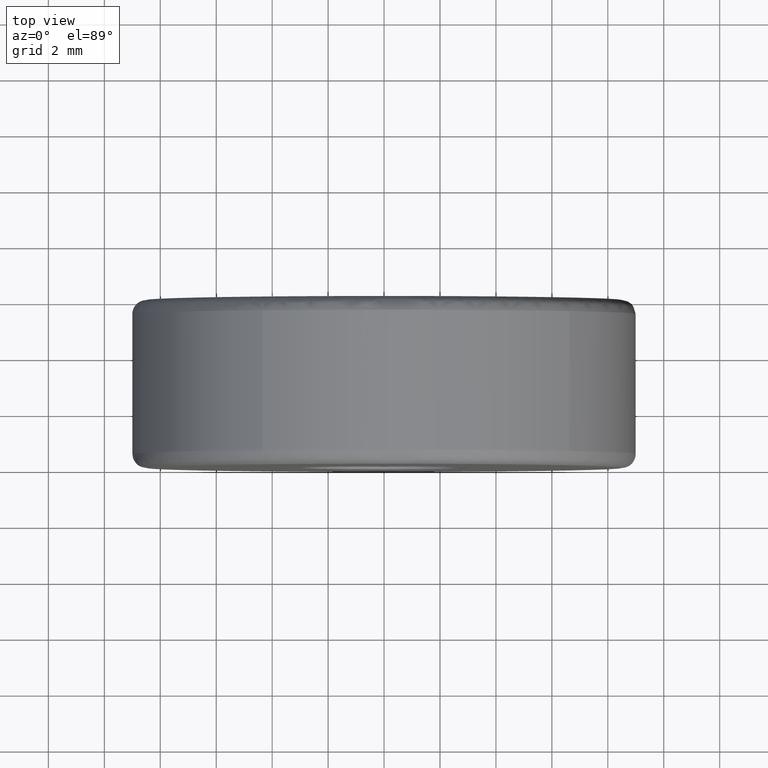
[diagram: clean part render]
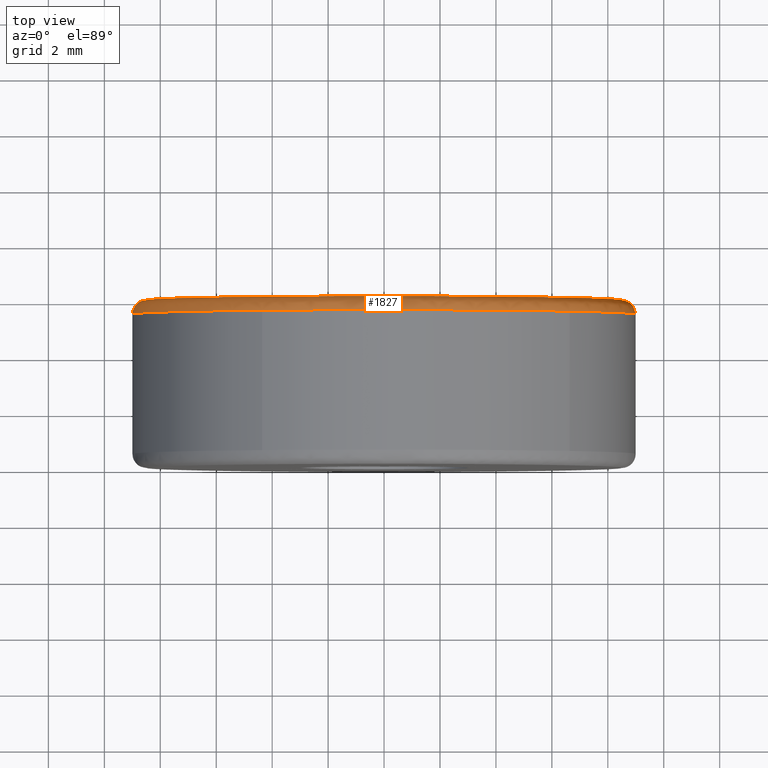
[diagram: same view with one face highlighted and labeled with its STEP entity id]
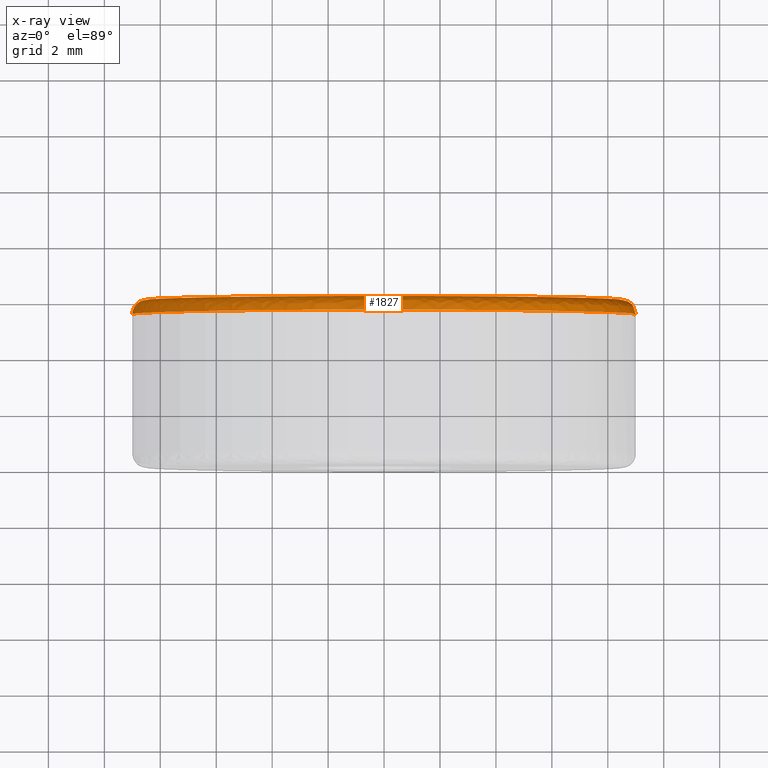
[diagram: x-ray of the same camera — body ghosted, the highlighted face saturated]
A machine part, top view. The second image highlights one B-rep face of the part: STEP entity #1827.
The next image is the same camera in x-ray: the body ghosted, the highlighted face saturated — about 0% of this face is hidden behind the body in this view.
In plain terms, the highlighted face is a freeform B-spline surface patch.
Its self-contained STEP definition (entity closure, byte-faithful):
#1195=CARTESIAN_POINT('',(-4.357976150434524,5.500000000007563,7.874518643843643));
#1196=VERTEX_POINT('',#1195);
#1202=CARTESIAN_POINT('',(-9.0,5.500000000060477,4.425539E-016));
#1203=VERTEX_POINT('',#1202);
#1204=CARTESIAN_POINT('',(-4.357976150434525,5.500000000007563,7.874518643843643));
#1205=CARTESIAN_POINT('',(-8.999999999999975,5.500000000024826,5.305494409966305));
#1206=CARTESIAN_POINT('',(-9.0,5.500000000060477,4.425539E-016));
#1214=(BOUNDED_CURVE()B_SPLINE_CURVE(2,(#1204,#1205,#1206),.UNSPECIFIED.,.F.,.U.)B_SPLINE_CURVE_WITH_KNOTS((3,3),(0.582484260833104,0.749999999999999),.UNSPECIFIED.)CURVE()GEOMETRIC_REPRESENTATION_ITEM()RATIONAL_B_SPLINE_CURVE((0.870495159877570,0.803743103813973,0.999999999999998))REPRESENTATION_ITEM(''));
#1215=EDGE_CURVE('',#1196,#1203,#1214,.T.);
#1232=CARTESIAN_POINT('',(8.939804749065401,5.500000000061864,-1.039178063946548));
#1233=VERTEX_POINT('',#1232);
#1247=CARTESIAN_POINT('',(6.635496357939939,5.500000000000000,6.080311512066266));
#1248=VERTEX_POINT('',#1247);
#1249=CARTESIAN_POINT('',(8.939804749065401,5.500000000061864,-1.039178063946548));
#1250=CARTESIAN_POINT('',(9.0,5.500000000000001,-0.521332461883805));
#1251=CARTESIAN_POINT('',(9.0,5.500000000000000,-1.775281E-016));
#1252=CARTESIAN_POINT('',(9.000000000000002,5.500000000000001,3.499908030057154));
#1253=CARTESIAN_POINT('',(6.635496357939940,5.500000000000000,6.080311512066266));
#1261=(BOUNDED_CURVE()B_SPLINE_CURVE(2,(#1249,#1250,#1251,#1252,#1253),.UNSPECIFIED.,.F.,.U.)B_SPLINE_CURVE_WITH_KNOTS((3,2,3),(0.229999999999891,0.250000000000000,0.368415192864189),.UNSPECIFIED.)CURVE()GEOMETRIC_REPRESENTATION_ITEM()RATIONAL_B_SPLINE_CURVE((0.956886118190445,0.976568542494796,1.0,0.861267972022367,0.853959782840026))REPRESENTATION_ITEM(''));
#1262=EDGE_CURVE('',#1233,#1248,#1261,.T.);
#1364=CARTESIAN_POINT('',(0.0,5.500000000000000,9.0));
#1365=VERTEX_POINT('',#1364);
#1366=CARTESIAN_POINT('',(6.635496357939939,5.500000000000000,6.080311512066266));
#1367=CARTESIAN_POINT('',(3.960095355138320,5.500000000000000,9.0));
#1368=CARTESIAN_POINT('',(0.0,5.500000000000000,9.0));
#1376=(BOUNDED_CURVE()B_SPLINE_CURVE(2,(#1366,#1367,#1368),.UNSPECIFIED.,.F.,.U.)B_SPLINE_CURVE_WITH_KNOTS((3,3),(0.368415192864190,0.500000000000000),.UNSPECIFIED.)CURVE()GEOMETRIC_REPRESENTATION_ITEM()RATIONAL_B_SPLINE_CURVE((0.853959782840026,0.845838809164181,1.0))REPRESENTATION_ITEM(''));
#1377=EDGE_CURVE('',#1248,#1365,#1376,.T.);
#1379=CARTESIAN_POINT('',(0.0,5.500000000000000,9.0));
#1380=CARTESIAN_POINT('',(-2.324320247690170,5.500000000000001,9.000000000000002));
#1381=CARTESIAN_POINT('',(-4.357976150434525,5.500000000007563,7.874518643843643));
#1389=(BOUNDED_CURVE()B_SPLINE_CURVE(2,(#1379,#1380,#1381),.UNSPECIFIED.,.F.,.U.)B_SPLINE_CURVE_WITH_KNOTS((3,3),(0.500000000000000,0.582484260833104),.UNSPECIFIED.)CURVE()GEOMETRIC_REPRESENTATION_ITEM()RATIONAL_B_SPLINE_CURVE((1.0,0.903363677372575,0.870495159877570))REPRESENTATION_ITEM(''));
#1390=EDGE_CURVE('',#1365,#1196,#1389,.T.);
#1732=CARTESIAN_POINT('',(8.408705382390977,5.998796154887645,-0.977441211980834));
#1733=CARTESIAN_POINT('',(8.465324419697662,5.998796154887641,-0.490360456728366));
#1734=CARTESIAN_POINT('',(8.465324419697662,5.998796154887643,-1.555004E-015));
#1735=CARTESIAN_POINT('',(8.465324419697661,5.998796154887642,8.465324419697659));
#1736=CARTESIAN_POINT('',(2.073338E-015,5.998796154887643,8.465324419697662));
#1737=CARTESIAN_POINT('',(-8.465324419697659,5.998796154887642,8.465324419697662));
#1738=CARTESIAN_POINT('',(-8.465324419697662,5.998796154887643,2.591673E-015));
#1739=CARTESIAN_POINT('',(8.978414568266807,6.038668183561947,-1.043665108739688));
#1740=CARTESIAN_POINT('',(9.038869675953198,6.038668183561947,-0.523583508777905));
#1741=CARTESIAN_POINT('',(9.038869675953196,6.038668183561947,-1.660359E-015));
#1742=CARTESIAN_POINT('',(9.038869675953196,6.038668183561945,9.038869675953194));
#1743=CARTESIAN_POINT('',(2.213811E-015,6.038668183561947,9.038869675953196));
#1744=CARTESIAN_POINT('',(-9.038869675953189,6.038668183561945,9.038869675953196));
#1745=CARTESIAN_POINT('',(-9.038869675953196,6.038668183561947,2.767264E-015));
#1746=CARTESIAN_POINT('',(8.938596156746488,5.465137879022374,-1.039036553611918));
#1747=CARTESIAN_POINT('',(8.998783151801401,5.465137879022370,-0.521261465898369));
#1748=CARTESIAN_POINT('',(8.998783151801399,5.465137879022370,-1.652995E-015));
#1749=CARTESIAN_POINT('',(8.998783151801403,5.465137879022372,8.998783151801401));
#1750=CARTESIAN_POINT('',(2.203993E-015,5.465137879022370,8.998783151801399));
#1751=CARTESIAN_POINT('',(-8.998783151801401,5.465137879022372,8.998783151801403));
#1752=CARTESIAN_POINT('',(-8.998783151801399,5.465137879022370,2.754992E-015));
#1760=(BOUNDED_SURFACE()B_SPLINE_SURFACE(2,2,((#1732,#1739,#1746),(#1733,#1740,#1747),(#1734,#1741,#1748),(#1735,#1742,#1749),(#1736,#1743,#1750),(#1737,#1744,#1751),(#1738,#1745,#1752)),.UNSPECIFIED.,.F.,.F.,.U.)B_SPLINE_SURFACE_WITH_KNOTS((3,2,2,3),(3,3),(0.0,1.192772630908098,16.102444736230680,31.012116841553269),(0.0,0.911185552149593),.UNSPECIFIED.)GEOMETRIC_REPRESENTATION_ITEM()RATIONAL_B_SPLINE_SURFACE(((0.876476015734820,0.573569810251308,0.871620867636307),(0.894504450374173,0.585367698213538,0.889549435629469),(0.915966868665182,0.599412800379155,0.910892965077561),(0.647686384175358,0.423848855878119,0.644098592541464),(0.915966868665182,0.599412800379155,0.910892965077561),(0.647686384175358,0.423848855878119,0.644098592541464),(0.915966868665182,0.599412800379155,0.910892965077561)))REPRESENTATION_ITEM('')SURFACE());
#1761=ORIENTED_EDGE('',*,*,#1377,.F.);
#1762=ORIENTED_EDGE('',*,*,#1262,.F.);
#1763=CARTESIAN_POINT('',(8.443148930439094,6.0,-0.981445949391750));
#1764=VERTEX_POINT('',#1763);
#1765=CARTESIAN_POINT('',(8.443148930439094,6.0,-0.981445949391750));
#1766=CARTESIAN_POINT('',(8.939804748942835,5.999999998452672,-1.039178063929380));
#1767=CARTESIAN_POINT('',(8.939804749065401,5.500000000061864,-1.039178063946548));
#1775=(BOUNDED_CURVE()B_SPLINE_CURVE(2,(#1765,#1766,#1767),.UNSPECIFIED.,.F.,.U.)B_SPLINE_CURVE_WITH_KNOTS((3,3),(-1.736413117869313,-0.276558718270009),.UNSPECIFIED.)CURVE()GEOMETRIC_REPRESENTATION_ITEM()RATIONAL_B_SPLINE_CURVE((0.850203275200330,0.599621899798078,0.845789311811561))REPRESENTATION_ITEM(''));
#1776=EDGE_CURVE('',#1764,#1233,#1775,.T.);
#1777=ORIENTED_EDGE('',*,*,#1776,.F.);
#1778=CARTESIAN_POINT('',(0.0,6.0,8.500000000000000));
#1779=VERTEX_POINT('',#1778);
#1780=CARTESIAN_POINT('',(8.443148930439094,6.0,-0.981445949391750));
#1781=CARTESIAN_POINT('',(8.500000000000000,6.0,-0.492369547354471));
#1782=CARTESIAN_POINT('',(8.500000000000000,6.0,-1.775281E-016));
#1783=CARTESIAN_POINT('',(8.500000000000002,6.0,8.500000000000002));
#1784=CARTESIAN_POINT('',(0.0,6.0,8.500000000000000));
#1792=(BOUNDED_CURVE()B_SPLINE_CURVE(2,(#1780,#1781,#1782,#1783,#1784),.UNSPECIFIED.,.F.,.U.)B_SPLINE_CURVE_WITH_KNOTS((3,2,3),(0.229999999999107,0.250000000000000,0.500000000000000),.UNSPECIFIED.)CURVE()GEOMETRIC_REPRESENTATION_ITEM()RATIONAL_B_SPLINE_CURVE((0.956886118188902,0.976568542493877,1.0,0.707106781186548,1.0))REPRESENTATION_ITEM(''));
#1793=EDGE_CURVE('',#1764,#1779,#1792,.T.);
#1794=ORIENTED_EDGE('',*,*,#1793,.T.);
#1795=CARTESIAN_POINT('',(-8.500000000038826,6.0,4.426226E-016));
#1796=VERTEX_POINT('',#1795);
#1797=CARTESIAN_POINT('',(0.0,6.0,8.500000000000000));
#1798=CARTESIAN_POINT('',(-8.499999999999957,6.000000000000001,8.500000000000000));
#1799=CARTESIAN_POINT('',(-8.500000000038826,5.999999999999999,4.426226E-016));
#1807=(BOUNDED_CURVE()B_SPLINE_CURVE(2,(#1797,#1798,#1799),.UNSPECIFIED.,.F.,.U.)B_SPLINE_CURVE_WITH_KNOTS((3,3),(0.500000000000000,0.749999999999999),.UNSPECIFIED.)CURVE()GEOMETRIC_REPRESENTATION_ITEM()RATIONAL_B_SPLINE_CURVE((1.0,0.707106781186549,0.999999999999998))REPRESENTATION_ITEM(''));
#1808=EDGE_CURVE('',#1779,#1796,#1807,.T.);
#1809=ORIENTED_EDGE('',*,*,#1808,.T.);
#1810=CARTESIAN_POINT('',(-8.500000000038826,6.000000000000001,4.426226E-016));
#1811=CARTESIAN_POINT('',(-8.999999999879044,5.999999999922346,8.742504E-016));
#1812=CARTESIAN_POINT('',(-9.0,5.500000000060478,4.425539E-016));
#1820=(BOUNDED_CURVE()B_SPLINE_CURVE(2,(#1810,#1811,#1812),.UNSPECIFIED.,.F.,.U.)B_SPLINE_CURVE_WITH_KNOTS((3,3),(-1.736413120911434,-0.276558718264298),.UNSPECIFIED.)CURVE()GEOMETRIC_REPRESENTATION_ITEM()RATIONAL_B_SPLINE_CURVE((0.888510409004884,0.626638727310543,0.883897567050882))REPRESENTATION_ITEM(''));
#1821=EDGE_CURVE('',#1796,#1203,#1820,.T.);
#1822=ORIENTED_EDGE('',*,*,#1821,.T.);
#1823=ORIENTED_EDGE('',*,*,#1215,.F.);
#1824=ORIENTED_EDGE('',*,*,#1390,.F.);
#1825=EDGE_LOOP('',(#1761,#1762,#1777,#1794,#1809,#1822,#1823,#1824));
#1826=FACE_OUTER_BOUND('',#1825,.T.);
#1827=ADVANCED_FACE('',(#1826),#1760,.T.);